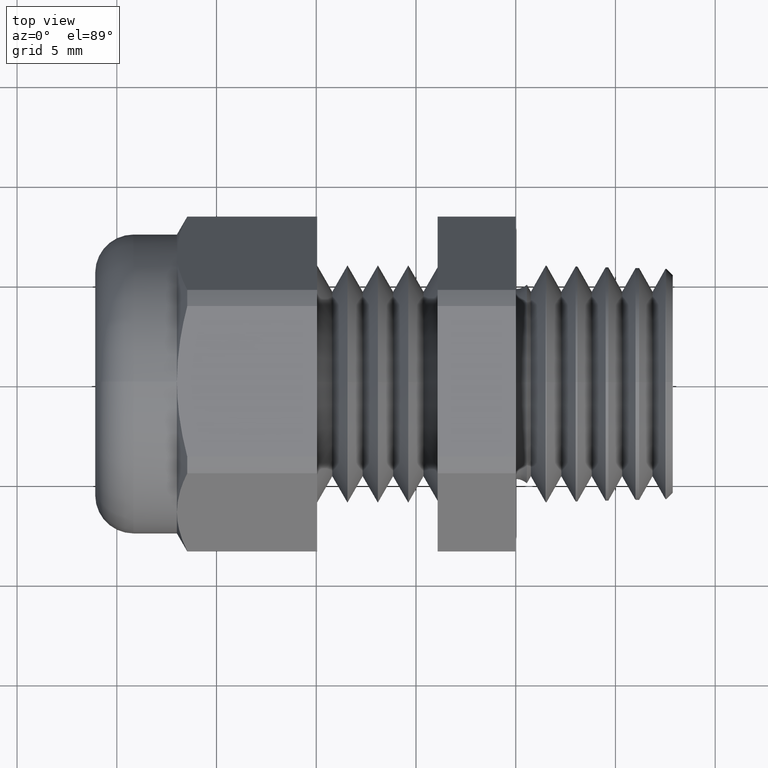
[diagram: clean part render]
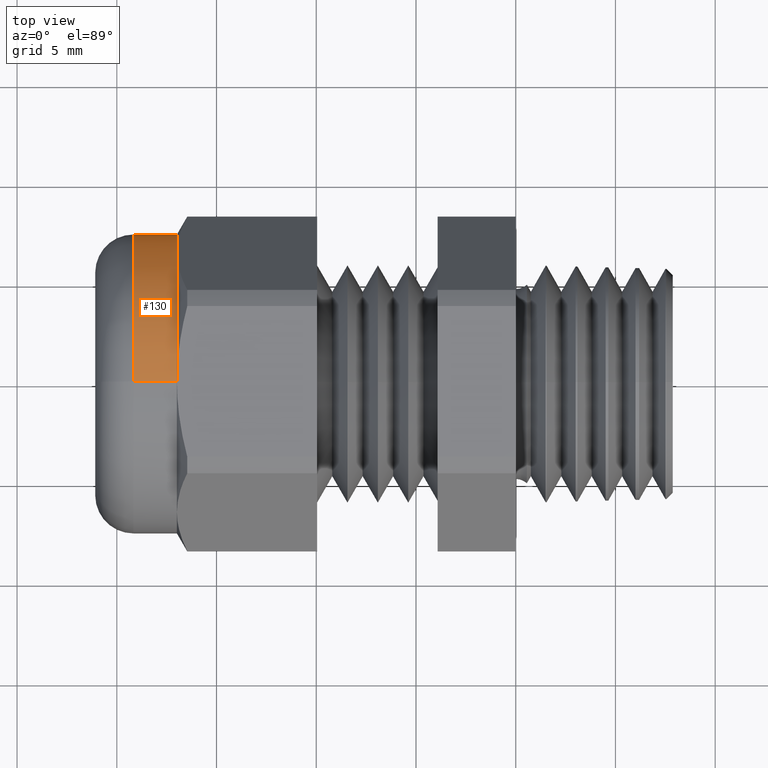
[diagram: same view with one face highlighted and labeled with its STEP entity id]
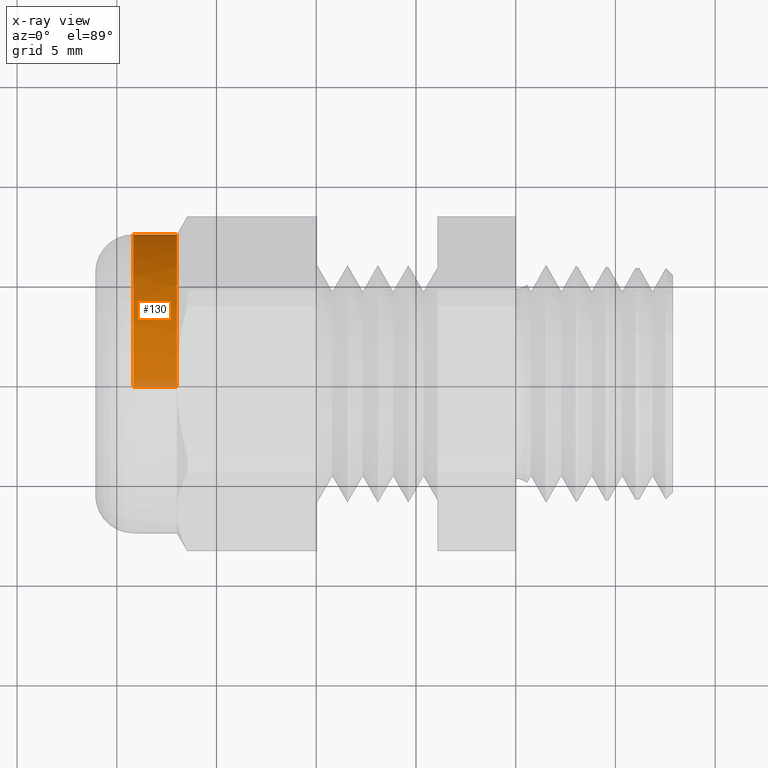
[diagram: x-ray of the same camera — body ghosted, the highlighted face saturated]
A machine part, top view. The second image highlights one B-rep face of the part: STEP entity #130.
The next image is the same camera in x-ray: the body ghosted, the highlighted face saturated — about 4% of this face is hidden behind the body in this view.
In plain terms, the highlighted cylindrical surface (partial cylindrical patch) has radius 7.493 mm, axis along (-1, 0, 0).
Its self-contained STEP definition (entity closure, byte-faithful):
#65 = VERTEX_POINT ( 'NONE', #1008 ) ;
#66 = VERTEX_POINT ( 'NONE', #1007 ) ;
#68 = ORIENTED_EDGE ( 'NONE', *, *, #69, .F. ) ;
#69 = EDGE_CURVE ( 'NONE', #66, #403, #1000, .T. ) ;
#71 = ORIENTED_EDGE ( 'NONE', *, *, #72, .T. ) ;
#72 = EDGE_CURVE ( 'NONE', #73, #436, #995, .T. ) ;
#73 = VERTEX_POINT ( 'NONE', #991 ) ;
#75 = ORIENTED_EDGE ( 'NONE', *, *, #3027, .T. ) ;
#101 = VERTEX_POINT ( 'NONE', #1071 ) ;
#110 = EDGE_CURVE ( 'NONE', #101, #73, #1057, .T. ) ;
#127 = ORIENTED_EDGE ( 'NONE', *, *, #110, .T. ) ;
#130 = ADVANCED_FACE ( 'NONE', ( #1137 ), #1135, .T. ) ;
#314 = EDGE_LOOP ( 'NONE', ( #127, #71, #75, #68, #416, #380 ) ) ;
#379 = EDGE_CURVE ( 'NONE', #65, #101, #1580, .T. ) ;
#380 = ORIENTED_EDGE ( 'NONE', *, *, #379, .T. ) ;
#403 = VERTEX_POINT ( 'NONE', #1596 ) ;
#416 = ORIENTED_EDGE ( 'NONE', *, *, #418, .T. ) ;
#418 = EDGE_CURVE ( 'NONE', #66, #65, #1632, .T. ) ;
#436 = VERTEX_POINT ( 'NONE', #1721 ) ;
#991 = CARTESIAN_POINT ( 'NONE',  ( -0.6687500000000000700, 0.0000000000000000000, -0.2950000000000005400 ) ) ;
#992 = DIRECTION ( 'NONE',  ( -1.000000000000000000, 0.0000000000000000000, 0.0000000000000000000 ) ) ;
#993 = VECTOR ( 'NONE', #992, 39.37007874015748100 ) ;
#994 = CARTESIAN_POINT ( 'NONE',  ( -0.7238591030180623300, 3.612708057484688900E-017, -0.2949999999999997100 ) ) ;
#995 = LINE ( 'NONE', #994, #993 ) ;
#997 = DIRECTION ( 'NONE',  ( -1.000000000000000000, 0.0000000000000000000, 0.0000000000000000000 ) ) ;
#998 = VECTOR ( 'NONE', #997, 39.37007874015748100 ) ;
#999 = CARTESIAN_POINT ( 'NONE',  ( -0.7238591030180623300, 0.0000000000000000000, 0.2949999999999997100 ) ) ;
#1000 = LINE ( 'NONE', #999, #998 ) ;
#1007 = CARTESIAN_POINT ( 'NONE',  ( -0.6687500000000000700, 0.0000000000000000000, 0.2949999999999997100 ) ) ;
#1008 = CARTESIAN_POINT ( 'NONE',  ( -0.6687500000000000700, 0.2554774941164092400, 0.1474999999999999400 ) ) ;
#1049 = DIRECTION ( 'NONE',  ( 0.0000000000000000000, 0.0000000000000000000, 1.000000000000000000 ) ) ;
#1050 = DIRECTION ( 'NONE',  ( -1.000000000000000000, 0.0000000000000000000, 0.0000000000000000000 ) ) ;
#1051 = CARTESIAN_POINT ( 'NONE',  ( -0.6687500000000000700, 0.0000000000000000000, 0.0000000000000000000 ) ) ;
#1052 = AXIS2_PLACEMENT_3D ( 'NONE', #1051, #1050, #1049 ) ;
#1057 = CIRCLE ( 'NONE', #1052, 0.2949999999999997100 ) ;
#1071 = CARTESIAN_POINT ( 'NONE',  ( -0.6687500000000000700, 0.2554774941164098000, -0.1475000000000000200 ) ) ;
#1131 = DIRECTION ( 'NONE',  ( 0.0000000000000000000, 0.0000000000000000000, 1.000000000000000000 ) ) ;
#1132 = DIRECTION ( 'NONE',  ( -1.000000000000000000, 0.0000000000000000000, 0.0000000000000000000 ) ) ;
#1133 = CARTESIAN_POINT ( 'NONE',  ( -0.7238591030180623300, 0.0000000000000000000, 0.0000000000000000000 ) ) ;
#1134 = AXIS2_PLACEMENT_3D ( 'NONE', #1133, #1132, #1131 ) ;
#1135 = CYLINDRICAL_SURFACE ( 'NONE', #1134, 0.2949999999999997100 ) ;
#1137 = FACE_OUTER_BOUND ( 'NONE', #314, .T. ) ;
#1577 = DIRECTION ( 'NONE',  ( 0.0000000000000000000, 0.0000000000000000000, 1.000000000000000000 ) ) ;
#1578 = DIRECTION ( 'NONE',  ( -1.000000000000000000, 0.0000000000000000000, 0.0000000000000000000 ) ) ;
#1579 = AXIS2_PLACEMENT_3D ( 'NONE', #1585, #1578, #1577 ) ;
#1580 = CIRCLE ( 'NONE', #1579, 0.2949999999999997100 ) ;
#1585 = CARTESIAN_POINT ( 'NONE',  ( -0.6687500000000000700, 0.0000000000000000000, 0.0000000000000000000 ) ) ;
#1596 = CARTESIAN_POINT ( 'NONE',  ( -0.7546000000000001600, 0.0000000000000000000, 0.2949999999999997100 ) ) ;
#1628 = DIRECTION ( 'NONE',  ( 0.0000000000000000000, 0.0000000000000000000, 1.000000000000000000 ) ) ;
#1629 = DIRECTION ( 'NONE',  ( -1.000000000000000000, 0.0000000000000000000, 0.0000000000000000000 ) ) ;
#1630 = CARTESIAN_POINT ( 'NONE',  ( -0.6687500000000000700, 0.0000000000000000000, 0.0000000000000000000 ) ) ;
#1631 = AXIS2_PLACEMENT_3D ( 'NONE', #1630, #1629, #1628 ) ;
#1632 = CIRCLE ( 'NONE', #1631, 0.2949999999999997100 ) ;
#1721 = CARTESIAN_POINT ( 'NONE',  ( -0.7546000000000001600, 3.612708057484688900E-017, -0.2949999999999997100 ) ) ;
#2680 = DIRECTION ( 'NONE',  ( 0.0000000000000000000, 0.0000000000000000000, -1.000000000000000000 ) ) ;
#2681 = DIRECTION ( 'NONE',  ( 1.000000000000000000, 0.0000000000000000000, 0.0000000000000000000 ) ) ;
#2682 = CARTESIAN_POINT ( 'NONE',  ( -0.7546000000000001600, 0.0000000000000000000, 0.0000000000000000000 ) ) ;
#2683 = AXIS2_PLACEMENT_3D ( 'NONE', #2682, #2681, #2680 ) ;
#2684 = CIRCLE ( 'NONE', #2683, 0.2949999999999997100 ) ;
#3027 = EDGE_CURVE ( 'NONE', #436, #403, #2684, .T. ) ;